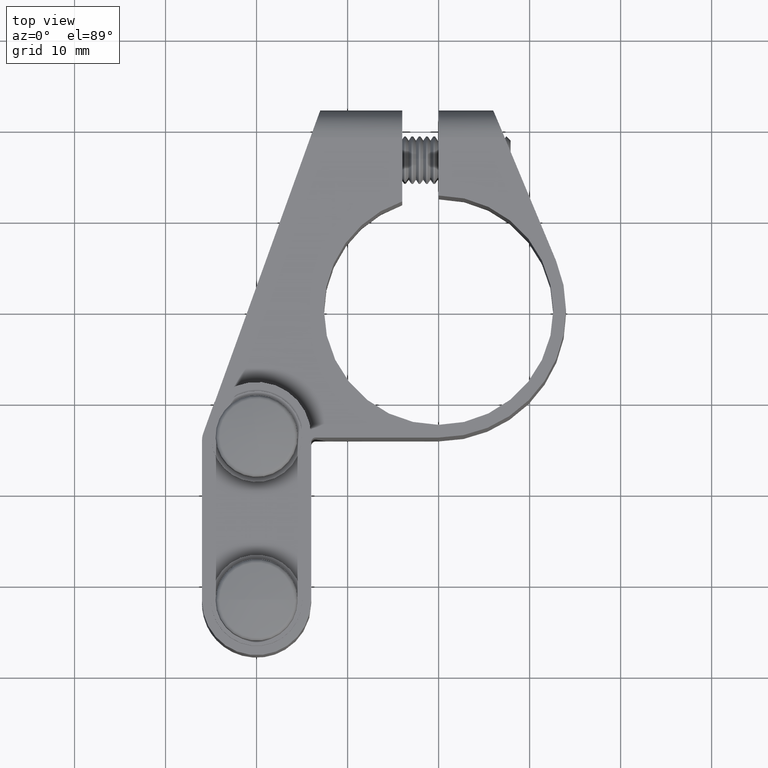
[diagram: clean part render]
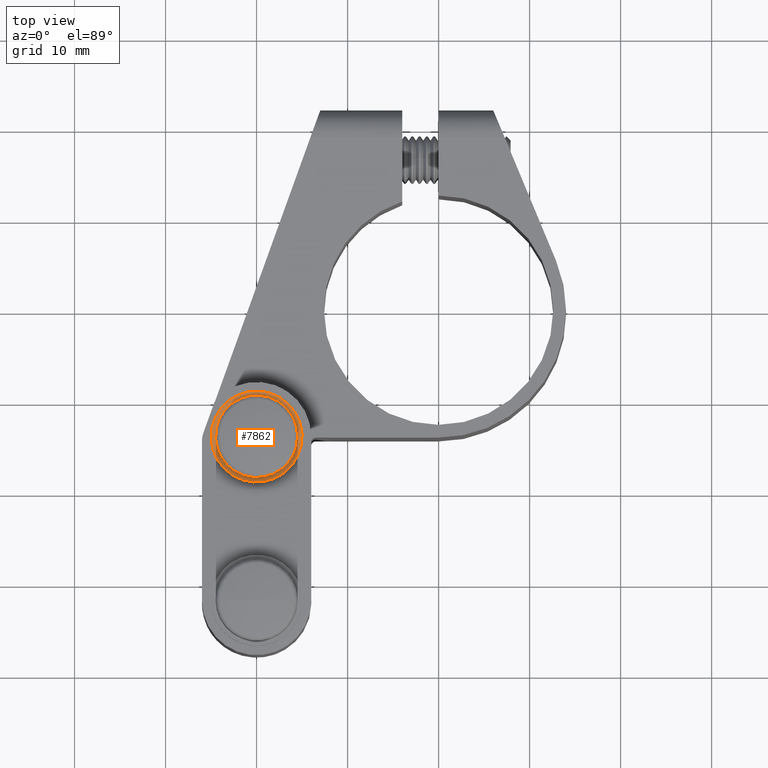
[diagram: same view with one face highlighted and labeled with its STEP entity id]
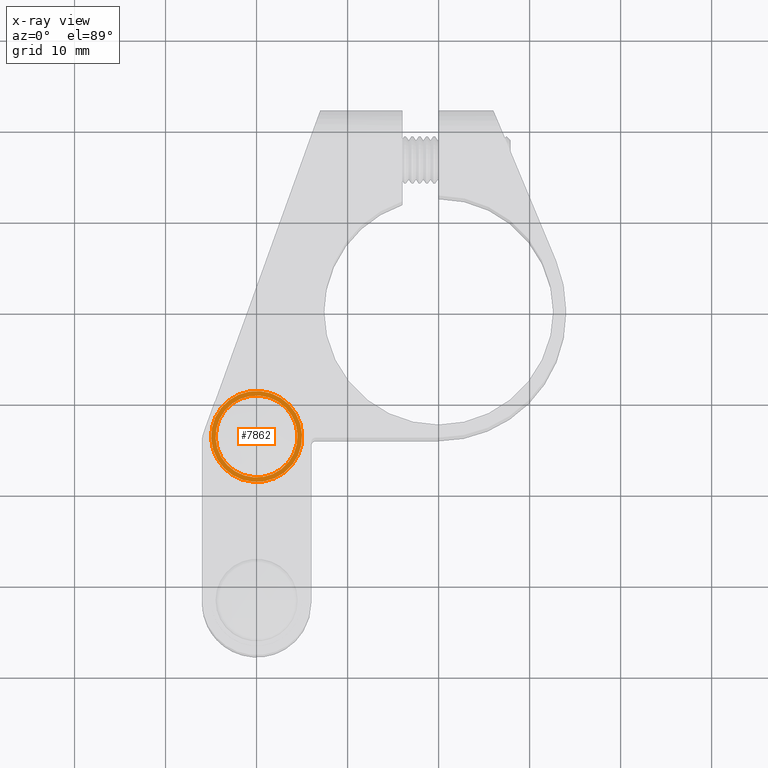
[diagram: x-ray of the same camera — body ghosted, the highlighted face saturated]
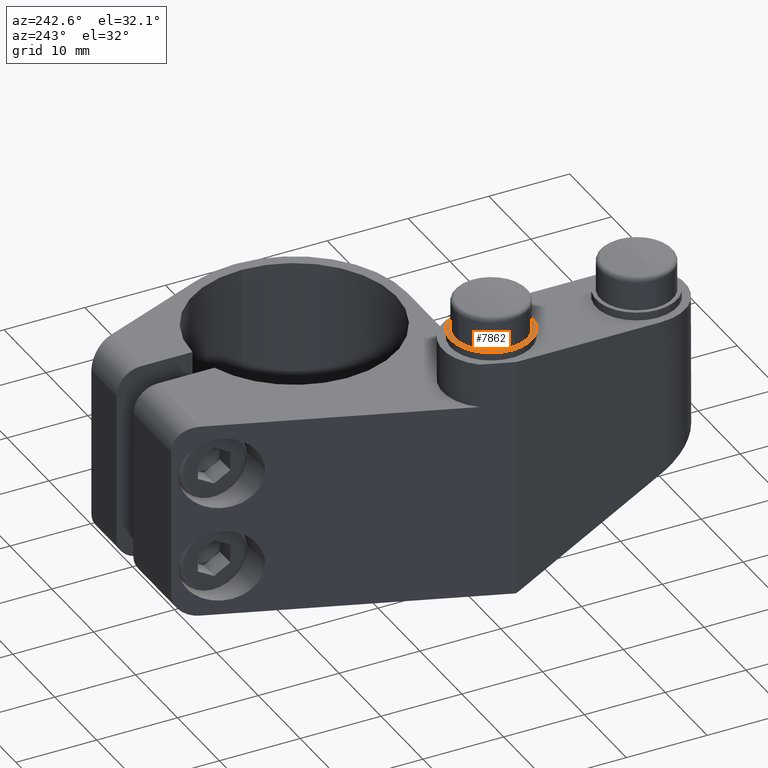
[diagram: same view with one face highlighted and labeled with its STEP entity id]
A machine part, top view. The second image highlights one B-rep face of the part: STEP entity #7862.
The next image is the same camera in x-ray: the body ghosted, the highlighted face saturated — about 0% of this face is hidden behind the body in this view.
A second angle (auxiliary view) of the same face is appended — the face is thin or edge-on in the first view.
In plain terms, the highlighted planar face has unit normal (0, -0, -1).
Its self-contained STEP definition (entity closure, byte-faithful):
#92 = CARTESIAN_POINT ( 'NONE',  ( 1.115561664207534900E-016, 7.500000000000000900, 0.0000000000000000000 ) ) ;
#571 = CARTESIAN_POINT ( 'NONE',  ( 1.115561664207535100E-016, 7.500000000000001800, 0.0000000000000000000 ) ) ;
#1076 = CARTESIAN_POINT ( 'NONE',  ( 4.500000000000000900, 7.500000000000001800, 5.510910596163089600E-016 ) ) ;
#2780 = CARTESIAN_POINT ( 'NONE',  ( -5.000000000000000000, 7.500000000000000900, 0.0000000000000000000 ) ) ;
#2855 = EDGE_CURVE ( 'NONE', #17222, #3460, #5475, .T. ) ;
#3460 = VERTEX_POINT ( 'NONE', #19006 ) ;
#3553 = DIRECTION ( 'NONE',  ( 1.487415552276713300E-017, 1.000000000000000000, -0.0000000000000000000 ) ) ;
#3597 = ORIENTED_EDGE ( 'NONE', *, *, #4211, .T. ) ;
#3906 = AXIS2_PLACEMENT_3D ( 'NONE', #92, #16540, #7445 ) ;
#3932 = EDGE_CURVE ( 'NONE', #13615, #9382, #10795, .T. ) ;
#4211 = EDGE_CURVE ( 'NONE', #3460, #17222, #15738, .T. ) ;
#4388 = DIRECTION ( 'NONE',  ( 1.487415552276713300E-017, 1.000000000000000000, -0.0000000000000000000 ) ) ;
#4750 = EDGE_CURVE ( 'NONE', #9382, #13615, #17614, .T. ) ;
#5475 = CIRCLE ( 'NONE', #3906, 5.000000000000000000 ) ;
#5959 = DIRECTION ( 'NONE',  ( -1.000000000000000000, 0.0000000000000000000, 0.0000000000000000000 ) ) ;
#6063 = EDGE_LOOP ( 'NONE', ( #8964, #10827 ) ) ;
#6490 = DIRECTION ( 'NONE',  ( -1.000000000000000000, 0.0000000000000000000, 0.0000000000000000000 ) ) ;
#7445 = DIRECTION ( 'NONE',  ( -1.000000000000000000, 0.0000000000000000000, 0.0000000000000000000 ) ) ;
#7862 = ADVANCED_FACE ( 'NONE', ( #11165, #8149 ), #16332, .F. ) ;
#8149 = FACE_OUTER_BOUND ( 'NONE', #9555, .T. ) ;
#8964 = ORIENTED_EDGE ( 'NONE', *, *, #4750, .F. ) ;
#9382 = VERTEX_POINT ( 'NONE', #15358 ) ;
#9551 = AXIS2_PLACEMENT_3D ( 'NONE', #17778, #11915, #16203 ) ;
#9555 = EDGE_LOOP ( 'NONE', ( #15330, #3597 ) ) ;
#10408 = AXIS2_PLACEMENT_3D ( 'NONE', #18782, #17189, #11138 ) ;
#10795 = CIRCLE ( 'NONE', #15671, 4.500000000000000900 ) ;
#10827 = ORIENTED_EDGE ( 'NONE', *, *, #3932, .F. ) ;
#11138 = DIRECTION ( 'NONE',  ( -1.000000000000000000, 0.0000000000000000000, 0.0000000000000000000 ) ) ;
#11165 = FACE_BOUND ( 'NONE', #6063, .T. ) ;
#11533 = AXIS2_PLACEMENT_3D ( 'NONE', #15040, #4388, #5959 ) ;
#11915 = DIRECTION ( 'NONE',  ( -1.487415552276713300E-017, -1.000000000000000000, 0.0000000000000000000 ) ) ;
#13615 = VERTEX_POINT ( 'NONE', #1076 ) ;
#15040 = CARTESIAN_POINT ( 'NONE',  ( 1.115561664207534900E-016, 7.500000000000000900, 0.0000000000000000000 ) ) ;
#15330 = ORIENTED_EDGE ( 'NONE', *, *, #2855, .T. ) ;
#15358 = CARTESIAN_POINT ( 'NONE',  ( -4.500000000000000900, 7.500000000000001800, 0.0000000000000000000 ) ) ;
#15671 = AXIS2_PLACEMENT_3D ( 'NONE', #571, #3553, #6490 ) ;
#15738 = CIRCLE ( 'NONE', #11533, 5.000000000000000000 ) ;
#16203 = DIRECTION ( 'NONE',  ( 1.000000000000000000, -1.487415552276713300E-017, 0.0000000000000000000 ) ) ;
#16332 = PLANE ( 'NONE',  #9551 ) ;
#16540 = DIRECTION ( 'NONE',  ( 1.487415552276713300E-017, 1.000000000000000000, -0.0000000000000000000 ) ) ;
#17189 = DIRECTION ( 'NONE',  ( 1.487415552276713300E-017, 1.000000000000000000, -0.0000000000000000000 ) ) ;
#17222 = VERTEX_POINT ( 'NONE', #2780 ) ;
#17614 = CIRCLE ( 'NONE', #10408, 4.500000000000000900 ) ;
#17778 = CARTESIAN_POINT ( 'NONE',  ( 5.000000000000000000, 7.500000000000001800, 0.0000000000000000000 ) ) ;
#18782 = CARTESIAN_POINT ( 'NONE',  ( 1.115561664207535100E-016, 7.500000000000001800, 0.0000000000000000000 ) ) ;
#19006 = CARTESIAN_POINT ( 'NONE',  ( 5.000000000000000000, 7.500000000000000900, 6.123233995736766300E-016 ) ) ;